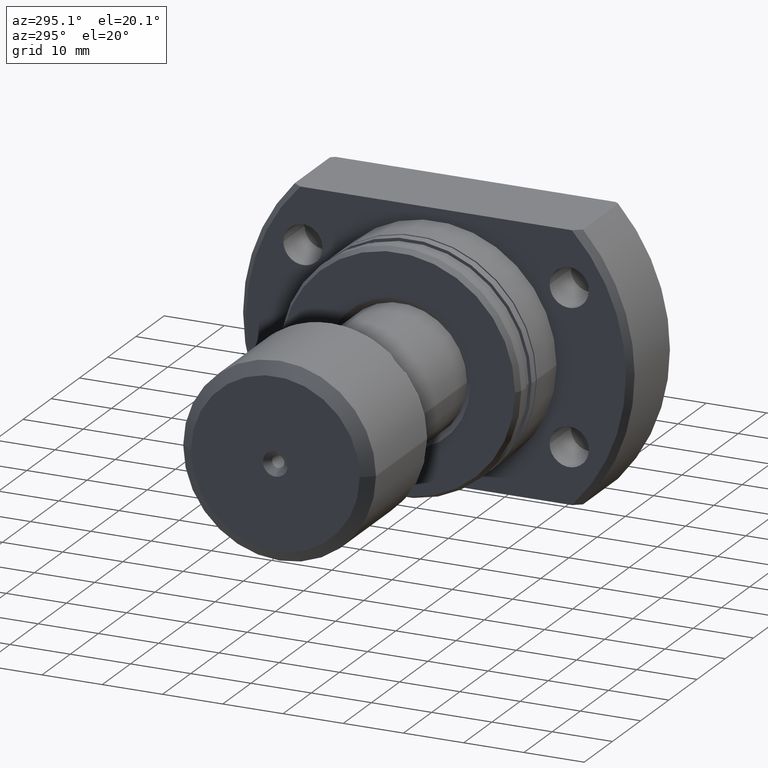
[diagram: clean part render]
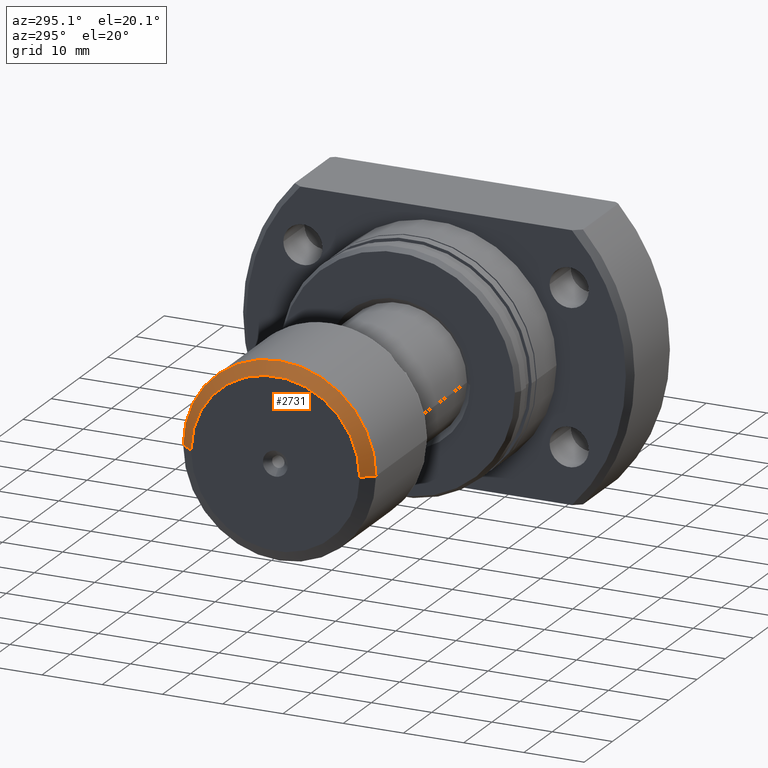
[diagram: same view with one face highlighted and labeled with its STEP entity id]
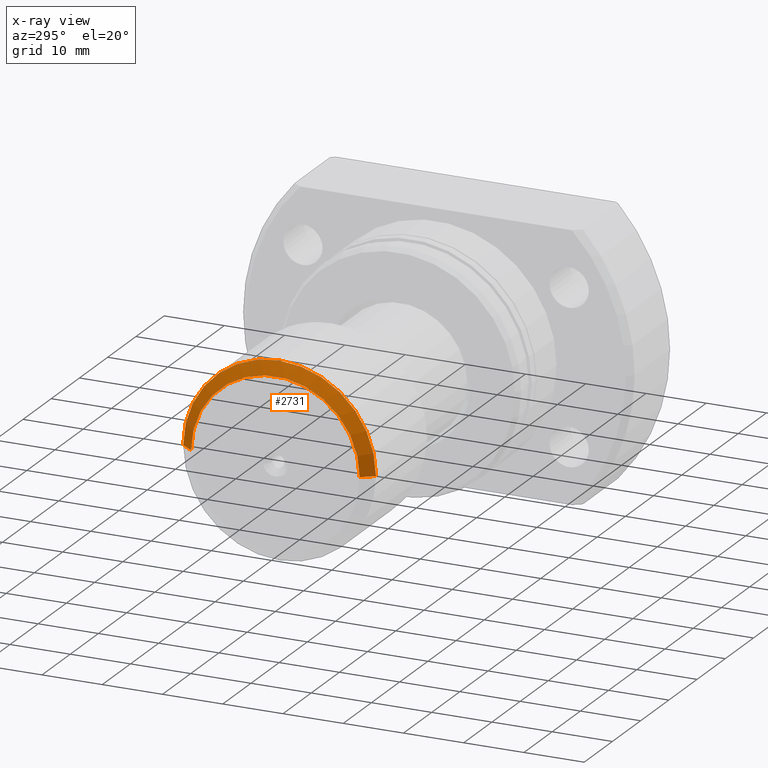
[diagram: x-ray of the same camera — body ghosted, the highlighted face saturated]
A machine part, auxiliary view. The second image highlights one B-rep face of the part: STEP entity #2731.
The next image is the same camera in x-ray: the body ghosted, the highlighted face saturated — about 0% of this face is hidden behind the body in this view.
In plain terms, the highlighted conical surface has half-angle 53.13 deg.
Its self-contained STEP definition (entity closure, byte-faithful):
#9 = DIRECTION ( 'NONE',  ( -1.000000000000000000, -1.069542322069065801E-17, -0.000000000000000000 ) ) ;
#303 = DIRECTION ( 'NONE',  ( 1.069542322069066109E-17, -1.000000000000000000, 0.000000000000000000 ) ) ;
#323 = DIRECTION ( 'NONE',  ( 1.355252715606880543E-17, -1.000000000000000000, 0.000000000000000000 ) ) ;
#340 = VERTEX_POINT ( 'NONE', #2034 ) ;
#349 = CARTESIAN_POINT ( 'NONE',  ( 1.415033668626956010E-15, 14.00000000000000000, 0.000000000000000000 ) ) ;
#433 = VECTOR ( 'NONE', #1397, 999.9999999999998863 ) ;
#435 = EDGE_LOOP ( 'NONE', ( #2112, #1220, #2007, #2937 ) ) ;
#739 = AXIS2_PLACEMENT_3D ( 'NONE', #766, #9, #323 ) ;
#766 = CARTESIAN_POINT ( 'NONE',  ( 1.500000000000001998, 1.604313483103600935E-17, 0.000000000000000000 ) ) ;
#781 = CARTESIAN_POINT ( 'NONE',  ( 1.714505518806294638E-15, -14.00000000000000000, 1.836970198721029589E-15 ) ) ;
#926 = VERTEX_POINT ( 'NONE', #781 ) ;
#927 = LINE ( 'NONE', #1911, #1212 ) ;
#1073 = DIRECTION ( 'NONE',  ( -1.000000000000000000, -1.069542322069065801E-17, -0.000000000000000000 ) ) ;
#1086 = EDGE_CURVE ( 'NONE', #926, #1734, #2391, .T. ) ;
#1181 = LINE ( 'NONE', #2923, #433 ) ;
#1212 = VECTOR ( 'NONE', #1638, 999.9999999999998863 ) ;
#1220 = ORIENTED_EDGE ( 'NONE', *, *, #1912, .T. ) ;
#1257 = CIRCLE ( 'NONE', #739, 16.00000000000000000 ) ;
#1397 = DIRECTION ( 'NONE',  ( 0.6000000000000001998, -0.7999999999999999334, 9.797174393178826150E-17 ) ) ;
#1472 = CARTESIAN_POINT ( 'NONE',  ( 1.564769593716625324E-15, 1.673587304766748118E-32, 0.000000000000000000 ) ) ;
#1542 = VERTEX_POINT ( 'NONE', #2986 ) ;
#1595 = EDGE_CURVE ( 'NONE', #340, #1542, #1257, .T. ) ;
#1619 = CONICAL_SURFACE ( 'NONE', #3034, 14.00000000000000000, 0.9272952180016120760 ) ;
#1638 = DIRECTION ( 'NONE',  ( 0.6000000000000001998, 0.7999999999999999334, 0.000000000000000000 ) ) ;
#1734 = VERTEX_POINT ( 'NONE', #349 ) ;
#1819 = AXIS2_PLACEMENT_3D ( 'NONE', #2773, #1073, #303 ) ;
#1911 = CARTESIAN_POINT ( 'NONE',  ( 1.415033668626956010E-15, 14.00000000000000000, 0.000000000000000000 ) ) ;
#1912 = EDGE_CURVE ( 'NONE', #926, #340, #1181, .T. ) ;
#1973 = DIRECTION ( 'NONE',  ( 1.000000000000000000, 1.069542322069065801E-17, 0.000000000000000000 ) ) ;
#2007 = ORIENTED_EDGE ( 'NONE', *, *, #1595, .T. ) ;
#2034 = CARTESIAN_POINT ( 'NONE',  ( 1.500000000000002220, -16.00000000000000000, 1.959434878635765526E-15 ) ) ;
#2112 = ORIENTED_EDGE ( 'NONE', *, *, #1086, .F. ) ;
#2254 = DIRECTION ( 'NONE',  ( -1.069542322069066109E-17, 1.000000000000000000, 0.000000000000000000 ) ) ;
#2356 = EDGE_CURVE ( 'NONE', #1734, #1542, #927, .T. ) ;
#2391 = CIRCLE ( 'NONE', #1819, 14.00000000000000000 ) ;
#2723 = FACE_OUTER_BOUND ( 'NONE', #435, .T. ) ;
#2731 = ADVANCED_FACE ( 'NONE', ( #2723 ), #1619, .T. ) ;
#2773 = CARTESIAN_POINT ( 'NONE',  ( 1.564769593716625324E-15, 1.673587304766748118E-32, 0.000000000000000000 ) ) ;
#2923 = CARTESIAN_POINT ( 'NONE',  ( 1.714505518806294638E-15, -14.00000000000000000, 1.714505518806294638E-15 ) ) ;
#2937 = ORIENTED_EDGE ( 'NONE', *, *, #2356, .F. ) ;
#2986 = CARTESIAN_POINT ( 'NONE',  ( 1.500000000000001776, 16.00000000000000000, 0.000000000000000000 ) ) ;
#3034 = AXIS2_PLACEMENT_3D ( 'NONE', #1472, #1973, #2254 ) ;